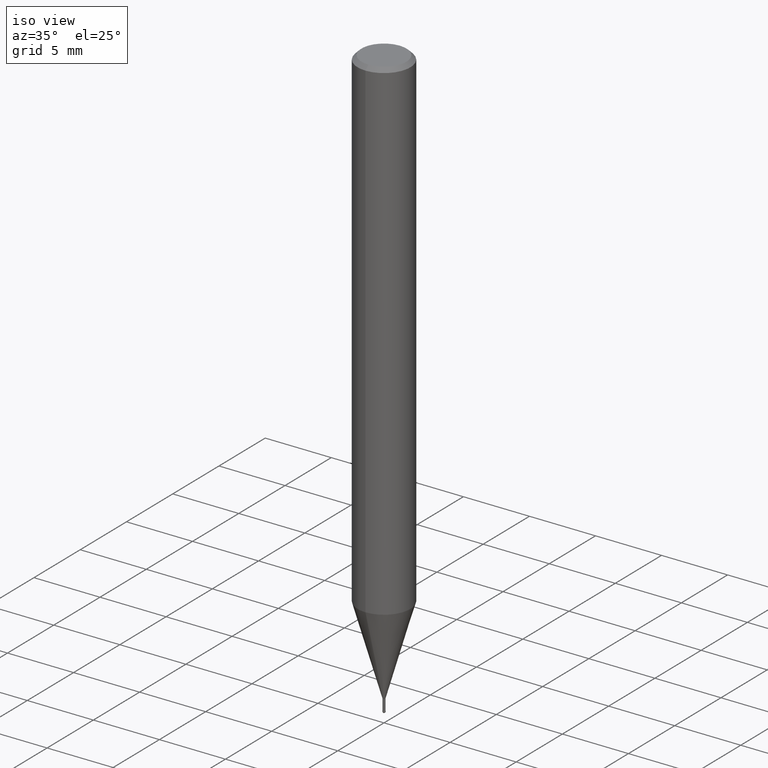
[diagram: clean part render]
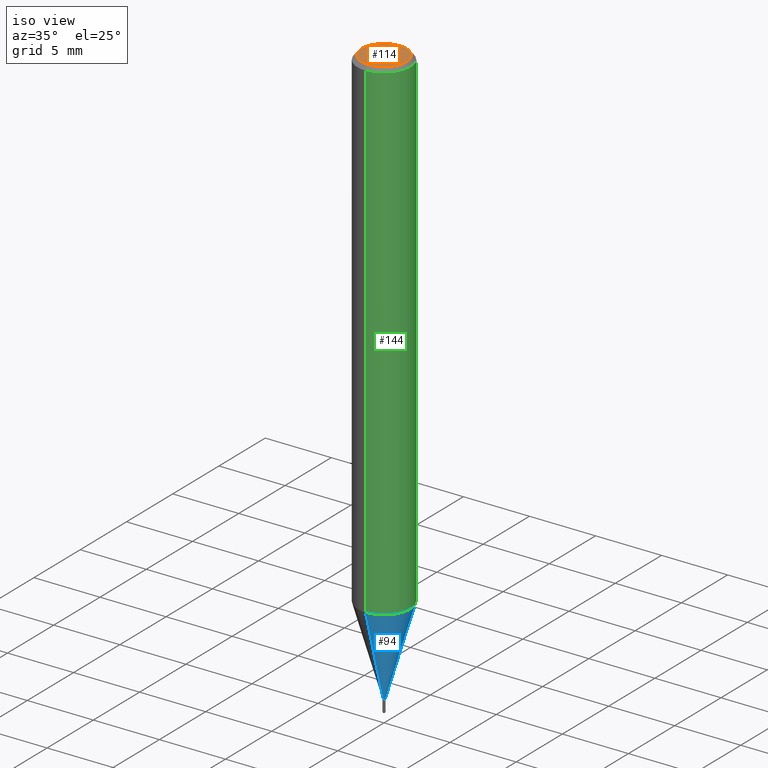
[diagram: same view with three faces highlighted in distinct colors, each labeled with its STEP entity id]
A machine part, iso view with three faces highlighted in distinct colors.
Their STEP definitions:

[orange] entity #114 — the highlighted planar face has unit normal (-0, 0, 1).
#114=ADVANCED_FACE('',(#260),#261,.T.);
#128=EDGE_CURVE('',#178,#192,#276,.T.);
#158=EDGE_CURVE('',#192,#178,#310,.T.);
#178=VERTEX_POINT('',#333);
#192=VERTEX_POINT('',#348);
#260=FACE_OUTER_BOUND('',#413,.T.);
#261=PLANE('',#414);
#276=CIRCLE('',#436,1.7);
#310=CIRCLE('',#483,1.7);
#333=CARTESIAN_POINT('',(2.08183080149804E-016,-1.7,0.0));
#348=CARTESIAN_POINT('',(0.0,1.7,0.0));
#413=EDGE_LOOP('',(#592,#593));
#414=AXIS2_PLACEMENT_3D('',#594,#595,#596);
#436=AXIS2_PLACEMENT_3D('',#618,#619,#620);
#483=AXIS2_PLACEMENT_3D('',#667,#668,#669);
#592=ORIENTED_EDGE('',*,*,#158,.F.);
#593=ORIENTED_EDGE('',*,*,#128,.F.);
#594=CARTESIAN_POINT('',(0.0,0.85,0.0));
#595=DIRECTION('',(-0.0,0.0,1.0));
#596=DIRECTION('',(0.0,-1.0,0.0));
#618=CARTESIAN_POINT('',(0.0,0.0,0.0));
#619=DIRECTION('',(0.0,0.0,-1.0));
#620=DIRECTION('',(0.0,1.0,0.0));
#667=CARTESIAN_POINT('',(0.0,0.0,0.0));
#668=DIRECTION('',(0.0,0.0,-1.0));
#669=DIRECTION('',(0.0,1.0,0.0));

[blue] entity #94 — the highlighted conical surface has half-angle 15.999 deg.
#94=ADVANCED_FACE('',(#235),#236,.T.);
#96=VERTEX_POINT('',#238);
#98=VERTEX_POINT('',#240);
#118=EDGE_CURVE('',#98,#160,#265,.T.);
#156=EDGE_CURVE('',#162,#98,#308,.T.);
#160=VERTEX_POINT('',#312);
#162=VERTEX_POINT('',#314);
#172=EDGE_CURVE('',#160,#96,#327,.T.);
#190=EDGE_CURVE('',#162,#96,#346,.T.);
#235=FACE_OUTER_BOUND('',#385,.T.);
#236=CONICAL_SURFACE('',#386,1.04745,0.279233718115795);
#238=CARTESIAN_POINT('',(2.44915147732706E-016,-1.99995,-37.356));
#240=CARTESIAN_POINT('',(0.0,0.09495,-44.0));
#265=CIRCLE('',#421,0.09495);
#308=LINE('',#479,#480);
#312=CARTESIAN_POINT('',(1.16276373295435E-017,-0.09495,-44.0));
#314=CARTESIAN_POINT('',(0.0,1.99995,-37.356));
#327=LINE('',#501,#502);
#346=CIRCLE('',#525,1.99995);
#385=EDGE_LOOP('',(#560,#561,#562,#563));
#386=AXIS2_PLACEMENT_3D('',#564,#565,#566);
#421=AXIS2_PLACEMENT_3D('',#598,#599,#600);
#479=CARTESIAN_POINT('',(-1.28271392531125E-016,1.04745,-40.678));
#480=VECTOR('',#666,1.0);
#501=CARTESIAN_POINT('',(1.28271392531125E-016,-1.04745,-40.678));
#502=VECTOR('',#692,1.0);
#525=AXIS2_PLACEMENT_3D('',#710,#711,#712);
#560=ORIENTED_EDGE('',*,*,#156,.F.);
#561=ORIENTED_EDGE('',*,*,#190,.T.);
#562=ORIENTED_EDGE('',*,*,#172,.F.);
#563=ORIENTED_EDGE('',*,*,#118,.F.);
#564=CARTESIAN_POINT('',(0.0,0.0,-40.678));
#565=DIRECTION('',(-0.0,-0.0,1.0));
#566=DIRECTION('',(0.0,1.0,0.0));
#598=CARTESIAN_POINT('',(0.0,0.0,-44.0));
#599=DIRECTION('',(0.0,0.0,-1.0));
#600=DIRECTION('',(0.0,1.0,0.0));
#666=DIRECTION('',(3.37524935540219E-017,-0.275619128127744,-0.961266922457078));
#692=DIRECTION('',(3.37524935540219E-017,-0.275619128127744,0.961266922457078));
#710=CARTESIAN_POINT('',(0.0,0.0,-37.356));
#711=DIRECTION('',(0.0,0.0,-1.0));
#712=DIRECTION('',(0.0,1.0,0.0));

[green] entity #144 — the highlighted cylindrical surface (edge-blend (fillet) strip) has radius 2 mm, axis along (-0, -0, 1).
#100=VERTEX_POINT('',#242);
#124=EDGE_CURVE('',#204,#184,#272,.T.);
#144=ADVANCED_FACE('',(#294),#295,.T.);
#164=VERTEX_POINT('',#316);
#180=EDGE_CURVE('',#164,#100,#335,.T.);
#184=VERTEX_POINT('',#339);
#202=EDGE_CURVE('',#100,#184,#358,.T.);
#204=VERTEX_POINT('',#360);
#212=EDGE_CURVE('',#204,#164,#370,.T.);
#242=CARTESIAN_POINT('',(2.44921270764475E-016,-2.0,-37.356));
#272=CIRCLE('',#430,2.0);
#294=FACE_OUTER_BOUND('',#459,.T.);
#295=CYLINDRICAL_SURFACE('',#460,2.0);
#316=CARTESIAN_POINT('',(0.0,2.0,-37.356));
#335=CIRCLE('',#511,2.0);
#339=CARTESIAN_POINT('',(2.44921270764475E-016,-2.0,-0.299999999999997));
#358=LINE('',#538,#539);
#360=CARTESIAN_POINT('',(0.0,2.0,-0.299999999999997));
#370=LINE('',#552,#553);
#430=AXIS2_PLACEMENT_3D('',#612,#613,#614);
#459=EDGE_LOOP('',(#641,#642,#643,#644));
#460=AXIS2_PLACEMENT_3D('',#645,#646,#647);
#511=AXIS2_PLACEMENT_3D('',#693,#694,#695);
#538=CARTESIAN_POINT('',(2.44921270764475E-016,-2.0,-18.828));
#539=VECTOR('',#721,1.0);
#552=CARTESIAN_POINT('',(-2.44921270764475E-016,2.0,-18.828));
#553=VECTOR('',#738,1.0);
#612=CARTESIAN_POINT('',(0.0,0.0,-0.299999999999997));
#613=DIRECTION('',(0.0,0.0,-1.0));
#614=DIRECTION('',(0.0,1.0,0.0));
#641=ORIENTED_EDGE('',*,*,#212,.F.);
#642=ORIENTED_EDGE('',*,*,#124,.T.);
#643=ORIENTED_EDGE('',*,*,#202,.F.);
#644=ORIENTED_EDGE('',*,*,#180,.F.);
#645=CARTESIAN_POINT('',(0.0,0.0,-18.828));
#646=DIRECTION('',(-0.0,-0.0,1.0));
#647=DIRECTION('',(0.0,1.0,0.0));
#693=CARTESIAN_POINT('',(0.0,0.0,-37.356));
#694=DIRECTION('',(0.0,0.0,-1.0));
#695=DIRECTION('',(0.0,1.0,0.0));
#721=DIRECTION('',(-0.0,-0.0,1.0));
#738=DIRECTION('',(0.0,0.0,-1.0));